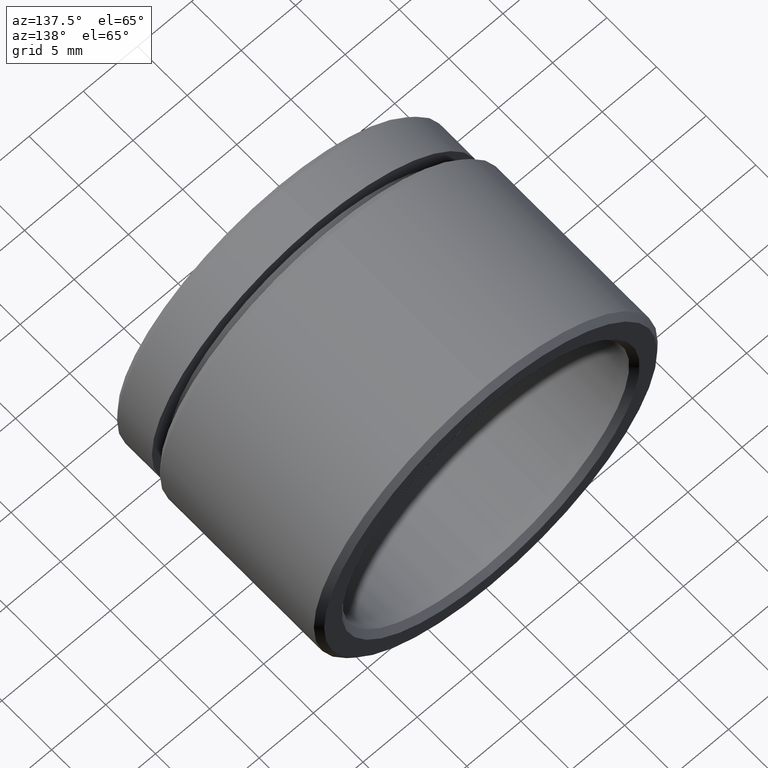
[diagram: clean part render]
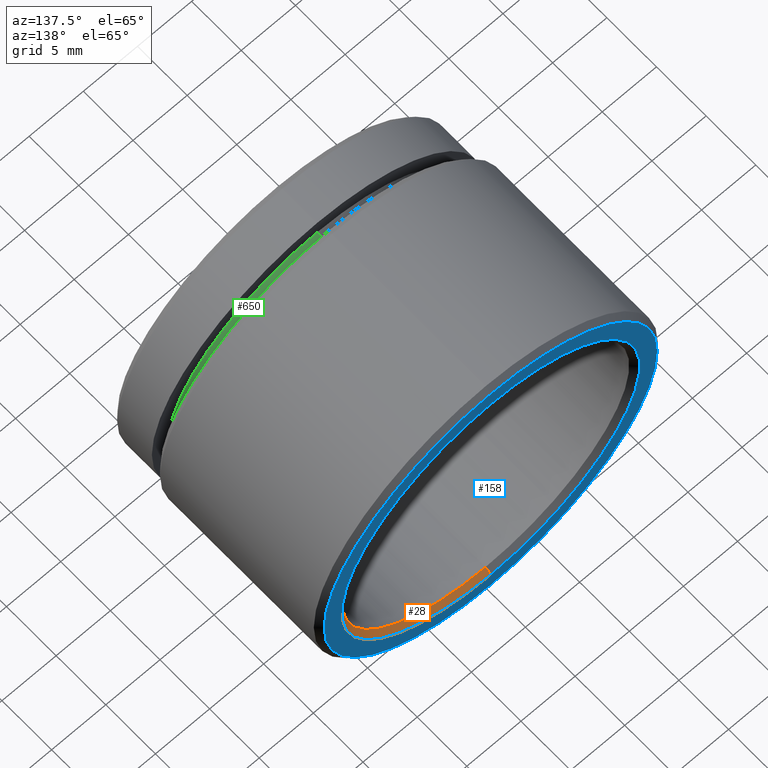
[diagram: same view with three faces highlighted in distinct colors, each labeled with its STEP entity id]
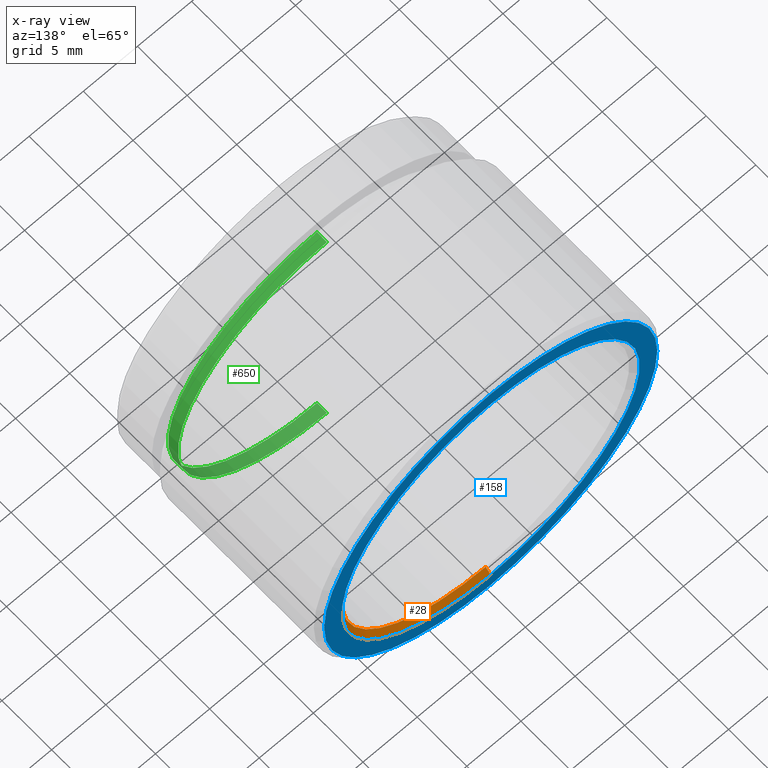
[diagram: x-ray of the same camera — body ghosted, the three highlighted faces saturated]
A machine part, auxiliary view with three faces highlighted in distinct colors.
The next image is the same camera in x-ray (body ghosted, the three faces saturated) — at least one of them is partly hidden behind the body in this view.
Their STEP definitions:

[orange] entity #28 — the highlighted conical surface has half-angle 45 deg.
#28 = ADVANCED_FACE ( 'NONE', ( #816 ), #794, .F. ) ;
#30 = DIRECTION ( 'NONE',  ( -0.0000000000000000000, -1.000000000000000000, -0.0000000000000000000 ) ) ;
#39 = DIRECTION ( 'NONE',  ( 0.0000000000000000000, 0.0000000000000000000, 1.000000000000000000 ) ) ;
#49 = DIRECTION ( 'NONE',  ( -0.0000000000000000000, 1.000000000000000000, -0.0000000000000000000 ) ) ;
#52 = CARTESIAN_POINT ( 'NONE',  ( 0.0000000000000000000, 21.50000000000000000, 0.0000000000000000000 ) ) ;
#55 = LINE ( 'NONE', #708, #549 ) ;
#57 = ORIENTED_EDGE ( 'NONE', *, *, #702, .T. ) ;
#66 = VERTEX_POINT ( 'NONE', #326 ) ;
#84 = VERTEX_POINT ( 'NONE', #328 ) ;
#123 = DIRECTION ( 'NONE',  ( 0.0000000000000000000, 0.0000000000000000000, 1.000000000000000000 ) ) ;
#141 = EDGE_CURVE ( 'NONE', #179, #84, #164, .T. ) ;
#164 = CIRCLE ( 'NONE', #310, 13.25000000000000200 ) ;
#175 = VECTOR ( 'NONE', #835, 1000.000000000000100 ) ;
#177 = ORIENTED_EDGE ( 'NONE', *, *, #814, .F. ) ;
#179 = VERTEX_POINT ( 'NONE', #450 ) ;
#214 = CARTESIAN_POINT ( 'NONE',  ( 0.0000000000000000000, 21.00000000000000400, 0.0000000000000000000 ) ) ;
#280 = CARTESIAN_POINT ( 'NONE',  ( 1.683889348827610100E-015, 21.50000000000000000, -13.74999999999999500 ) ) ;
#310 = AXIS2_PLACEMENT_3D ( 'NONE', #214, #830, #602 ) ;
#326 = CARTESIAN_POINT ( 'NONE',  ( 0.0000000000000000000, 21.50000000000000000, 13.74999999999999500 ) ) ;
#328 = CARTESIAN_POINT ( 'NONE',  ( 0.0000000000000000000, 21.00000000000000400, -13.25000000000000200 ) ) ;
#401 = EDGE_CURVE ( 'NONE', #690, #66, #873, .T. ) ;
#449 = AXIS2_PLACEMENT_3D ( 'NONE', #52, #49, #39 ) ;
#450 = CARTESIAN_POINT ( 'NONE',  ( 1.622657008870243300E-015, 21.00000000000000400, 13.25000000000000200 ) ) ;
#522 = LINE ( 'NONE', #631, #175 ) ;
#549 = VECTOR ( 'NONE', #572, 1000.000000000000100 ) ;
#572 = DIRECTION ( 'NONE',  ( 0.0000000000000000000, 0.7071067811865474600, 0.7071067811865474600 ) ) ;
#602 = DIRECTION ( 'NONE',  ( 0.0000000000000000000, 0.0000000000000000000, 1.000000000000000000 ) ) ;
#608 = ORIENTED_EDGE ( 'NONE', *, *, #401, .F. ) ;
#624 = EDGE_LOOP ( 'NONE', ( #177, #832, #57, #608 ) ) ;
#631 = CARTESIAN_POINT ( 'NONE',  ( 1.683889348827610100E-015, 21.50000000000000000, -13.74999999999999500 ) ) ;
#651 = AXIS2_PLACEMENT_3D ( 'NONE', #821, #30, #123 ) ;
#690 = VERTEX_POINT ( 'NONE', #280 ) ;
#702 = EDGE_CURVE ( 'NONE', #179, #66, #55, .T. ) ;
#708 = CARTESIAN_POINT ( 'NONE',  ( 0.0000000000000000000, 21.50000000000000000, 13.74999999999999500 ) ) ;
#794 = CONICAL_SURFACE ( 'NONE', #449, 13.74999999999999500, 0.7853981633974482800 ) ;
#814 = EDGE_CURVE ( 'NONE', #84, #690, #522, .T. ) ;
#816 = FACE_OUTER_BOUND ( 'NONE', #624, .T. ) ;
#821 = CARTESIAN_POINT ( 'NONE',  ( 0.0000000000000000000, 21.50000000000000000, 0.0000000000000000000 ) ) ;
#830 = DIRECTION ( 'NONE',  ( -0.0000000000000000000, 1.000000000000000000, -0.0000000000000000000 ) ) ;
#832 = ORIENTED_EDGE ( 'NONE', *, *, #141, .F. ) ;
#835 = DIRECTION ( 'NONE',  ( 8.659560562354932900E-017, 0.7071067811865474600, -0.7071067811865474600 ) ) ;
#873 = CIRCLE ( 'NONE', #651, 13.74999999999999500 ) ;

[blue] entity #158 — the highlighted planar face has unit normal (0, 1, 0).
#8 = DIRECTION ( 'NONE',  ( 0.0000000000000000000, 1.000000000000000000, 0.0000000000000000000 ) ) ;
#30 = DIRECTION ( 'NONE',  ( -0.0000000000000000000, -1.000000000000000000, -0.0000000000000000000 ) ) ;
#60 = AXIS2_PLACEMENT_3D ( 'NONE', #488, #547, #555 ) ;
#66 = VERTEX_POINT ( 'NONE', #326 ) ;
#71 = CARTESIAN_POINT ( 'NONE',  ( 0.0000000000000000000, 21.50000000000000000, 0.0000000000000000000 ) ) ;
#77 = FACE_BOUND ( 'NONE', #388, .T. ) ;
#94 = CIRCLE ( 'NONE', #110, 13.74999999999999500 ) ;
#106 = CARTESIAN_POINT ( 'NONE',  ( 1.913510623667739100E-015, 21.50000000000000000, 15.37499999999999600 ) ) ;
#110 = AXIS2_PLACEMENT_3D ( 'NONE', #71, #334, #171 ) ;
#123 = DIRECTION ( 'NONE',  ( 0.0000000000000000000, 0.0000000000000000000, 1.000000000000000000 ) ) ;
#157 = ORIENTED_EDGE ( 'NONE', *, *, #601, .T. ) ;
#158 = ADVANCED_FACE ( 'NONE', ( #77, #679 ), #546, .T. ) ;
#171 = DIRECTION ( 'NONE',  ( 0.0000000000000000000, 0.0000000000000000000, 1.000000000000000000 ) ) ;
#195 = AXIS2_PLACEMENT_3D ( 'NONE', #235, #227, #223 ) ;
#223 = DIRECTION ( 'NONE',  ( 0.0000000000000000000, 0.0000000000000000000, 1.000000000000000000 ) ) ;
#227 = DIRECTION ( 'NONE',  ( 0.0000000000000000000, 1.000000000000000000, 0.0000000000000000000 ) ) ;
#231 = ORIENTED_EDGE ( 'NONE', *, *, #662, .T. ) ;
#235 = CARTESIAN_POINT ( 'NONE',  ( 0.0000000000000000000, 21.50000000000000000, 0.0000000000000000000 ) ) ;
#280 = CARTESIAN_POINT ( 'NONE',  ( 1.683889348827610100E-015, 21.50000000000000000, -13.74999999999999500 ) ) ;
#285 = ORIENTED_EDGE ( 'NONE', *, *, #498, .T. ) ;
#290 = DIRECTION ( 'NONE',  ( 0.0000000000000000000, 0.0000000000000000000, 1.000000000000000000 ) ) ;
#326 = CARTESIAN_POINT ( 'NONE',  ( 0.0000000000000000000, 21.50000000000000000, 13.74999999999999500 ) ) ;
#334 = DIRECTION ( 'NONE',  ( -0.0000000000000000000, -1.000000000000000000, -0.0000000000000000000 ) ) ;
#388 = EDGE_LOOP ( 'NONE', ( #231, #439 ) ) ;
#401 = EDGE_CURVE ( 'NONE', #690, #66, #873, .T. ) ;
#439 = ORIENTED_EDGE ( 'NONE', *, *, #401, .T. ) ;
#454 = CIRCLE ( 'NONE', #484, 15.37499999999999600 ) ;
#481 = VERTEX_POINT ( 'NONE', #106 ) ;
#484 = AXIS2_PLACEMENT_3D ( 'NONE', #540, #8, #290 ) ;
#488 = CARTESIAN_POINT ( 'NONE',  ( 15.87500000000000000, 21.50000000000000000, 0.0000000000000000000 ) ) ;
#489 = CIRCLE ( 'NONE', #195, 15.37499999999999600 ) ;
#498 = EDGE_CURVE ( 'NONE', #481, #528, #454, .T. ) ;
#528 = VERTEX_POINT ( 'NONE', #640 ) ;
#540 = CARTESIAN_POINT ( 'NONE',  ( 0.0000000000000000000, 21.50000000000000000, 0.0000000000000000000 ) ) ;
#546 = PLANE ( 'NONE',  #60 ) ;
#547 = DIRECTION ( 'NONE',  ( 0.0000000000000000000, 1.000000000000000000, 0.0000000000000000000 ) ) ;
#555 = DIRECTION ( 'NONE',  ( 0.0000000000000000000, -0.0000000000000000000, 1.000000000000000000 ) ) ;
#601 = EDGE_CURVE ( 'NONE', #528, #481, #489, .T. ) ;
#640 = CARTESIAN_POINT ( 'NONE',  ( 0.0000000000000000000, 21.50000000000000000, -15.37499999999999600 ) ) ;
#651 = AXIS2_PLACEMENT_3D ( 'NONE', #821, #30, #123 ) ;
#662 = EDGE_CURVE ( 'NONE', #66, #690, #94, .T. ) ;
#679 = FACE_OUTER_BOUND ( 'NONE', #761, .T. ) ;
#690 = VERTEX_POINT ( 'NONE', #280 ) ;
#761 = EDGE_LOOP ( 'NONE', ( #157, #285 ) ) ;
#821 = CARTESIAN_POINT ( 'NONE',  ( 0.0000000000000000000, 21.50000000000000000, 0.0000000000000000000 ) ) ;
#873 = CIRCLE ( 'NONE', #651, 13.74999999999999500 ) ;

[green] entity #650 — the highlighted cylindrical surface (partial cylindrical patch) has radius 13.75 mm, axis along (-0, -1, -0).
#9 = CARTESIAN_POINT ( 'NONE',  ( 0.0000000000000000000, 0.0000000000000000000, -13.75000000000000000 ) ) ;
#96 = VERTEX_POINT ( 'NONE', #604 ) ;
#113 = FACE_OUTER_BOUND ( 'NONE', #366, .T. ) ;
#139 = AXIS2_PLACEMENT_3D ( 'NONE', #571, #189, #743 ) ;
#178 = CIRCLE ( 'NONE', #267, 13.75000000000000000 ) ;
#189 = DIRECTION ( 'NONE',  ( -0.0000000000000000000, -1.000000000000000000, -0.0000000000000000000 ) ) ;
#198 = CARTESIAN_POINT ( 'NONE',  ( 0.0000000000000000000, 5.000000000000000000, -13.75000000000000000 ) ) ;
#208 = DIRECTION ( 'NONE',  ( -0.0000000000000000000, -1.000000000000000000, -0.0000000000000000000 ) ) ;
#210 = VERTEX_POINT ( 'NONE', #791 ) ;
#250 = CARTESIAN_POINT ( 'NONE',  ( 0.0000000000000000000, 4.000000000000000000, 0.0000000000000000000 ) ) ;
#267 = AXIS2_PLACEMENT_3D ( 'NONE', #250, #678, #869 ) ;
#307 = VECTOR ( 'NONE', #208, 1000.000000000000000 ) ;
#331 = EDGE_CURVE ( 'NONE', #647, #418, #714, .T. ) ;
#336 = ORIENTED_EDGE ( 'NONE', *, *, #574, .F. ) ;
#366 = EDGE_LOOP ( 'NONE', ( #844, #501, #336, #705 ) ) ;
#418 = VERTEX_POINT ( 'NONE', #441 ) ;
#436 = CYLINDRICAL_SURFACE ( 'NONE', #139, 13.75000000000000000 ) ;
#441 = CARTESIAN_POINT ( 'NONE',  ( 1.683889348827610700E-015, 5.000000000000000000, 13.75000000000000000 ) ) ;
#445 = DIRECTION ( 'NONE',  ( -0.0000000000000000000, -1.000000000000000000, -0.0000000000000000000 ) ) ;
#501 = ORIENTED_EDGE ( 'NONE', *, *, #515, .T. ) ;
#515 = EDGE_CURVE ( 'NONE', #418, #210, #792, .T. ) ;
#530 = CARTESIAN_POINT ( 'NONE',  ( 0.0000000000000000000, 5.000000000000000000, 0.0000000000000000000 ) ) ;
#571 = CARTESIAN_POINT ( 'NONE',  ( 0.0000000000000000000, 0.0000000000000000000, 0.0000000000000000000 ) ) ;
#574 = EDGE_CURVE ( 'NONE', #96, #210, #178, .T. ) ;
#576 = DIRECTION ( 'NONE',  ( 0.0000000000000000000, 0.0000000000000000000, -1.000000000000000000 ) ) ;
#595 = VECTOR ( 'NONE', #649, 1000.000000000000000 ) ;
#604 = CARTESIAN_POINT ( 'NONE',  ( 0.0000000000000000000, 4.000000000000000000, -13.75000000000000000 ) ) ;
#644 = CARTESIAN_POINT ( 'NONE',  ( 1.683889348827610700E-015, 0.0000000000000000000, 13.75000000000000000 ) ) ;
#647 = VERTEX_POINT ( 'NONE', #198 ) ;
#649 = DIRECTION ( 'NONE',  ( -0.0000000000000000000, -1.000000000000000000, -0.0000000000000000000 ) ) ;
#650 = ADVANCED_FACE ( 'NONE', ( #113 ), #436, .T. ) ;
#678 = DIRECTION ( 'NONE',  ( -0.0000000000000000000, -1.000000000000000000, -0.0000000000000000000 ) ) ;
#698 = AXIS2_PLACEMENT_3D ( 'NONE', #530, #445, #576 ) ;
#705 = ORIENTED_EDGE ( 'NONE', *, *, #766, .F. ) ;
#714 = CIRCLE ( 'NONE', #698, 13.75000000000000000 ) ;
#743 = DIRECTION ( 'NONE',  ( 0.0000000000000000000, 0.0000000000000000000, -1.000000000000000000 ) ) ;
#766 = EDGE_CURVE ( 'NONE', #647, #96, #823, .T. ) ;
#791 = CARTESIAN_POINT ( 'NONE',  ( 1.683889348827610700E-015, 4.000000000000000000, 13.75000000000000000 ) ) ;
#792 = LINE ( 'NONE', #644, #595 ) ;
#823 = LINE ( 'NONE', #9, #307 ) ;
#844 = ORIENTED_EDGE ( 'NONE', *, *, #331, .T. ) ;
#869 = DIRECTION ( 'NONE',  ( 0.0000000000000000000, 0.0000000000000000000, -1.000000000000000000 ) ) ;